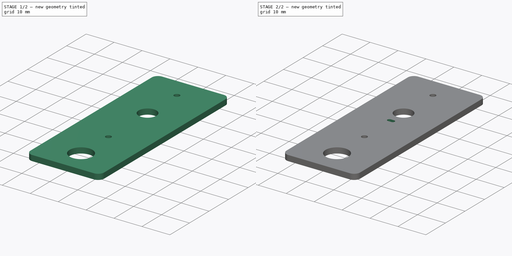
[diagram: build sequence overview — one tinted view per stage of 2, left to right]
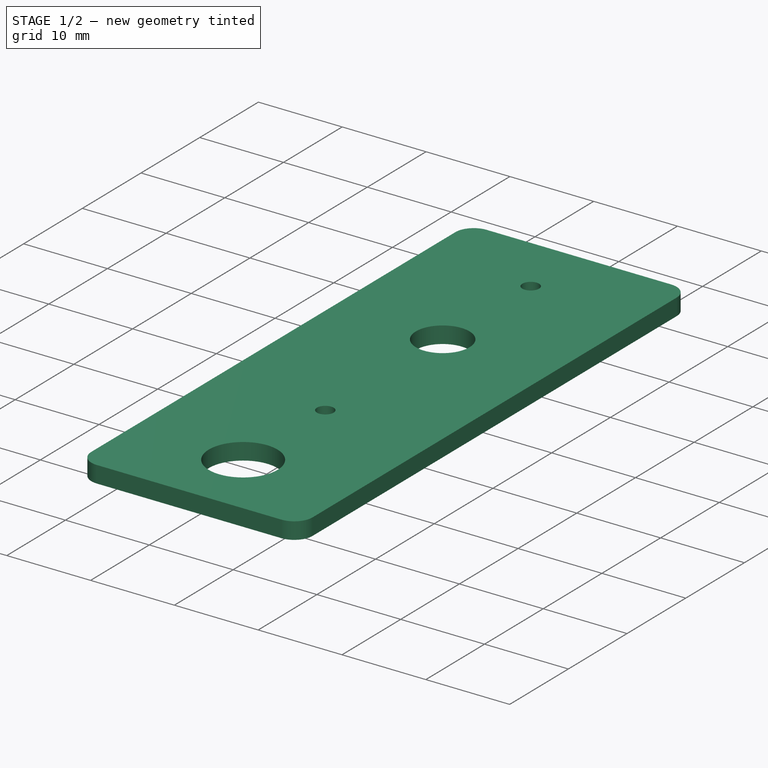
[diagram: stage 1 of 2 — iso view after this stage's code; geometry added in this stage tinted green]
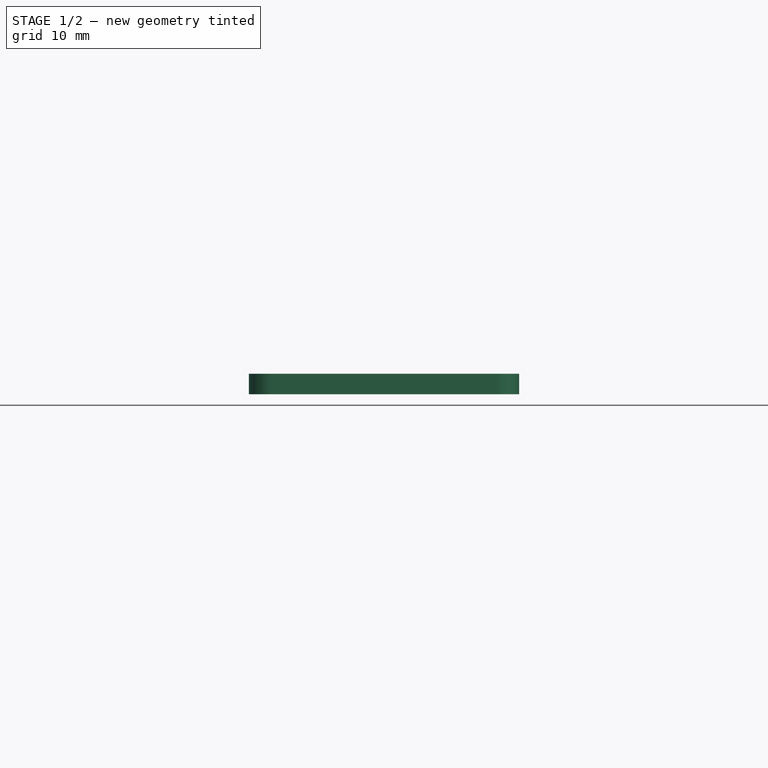
[diagram: stage 1 of 2 — front view after this stage's code; geometry added in this stage tinted green]
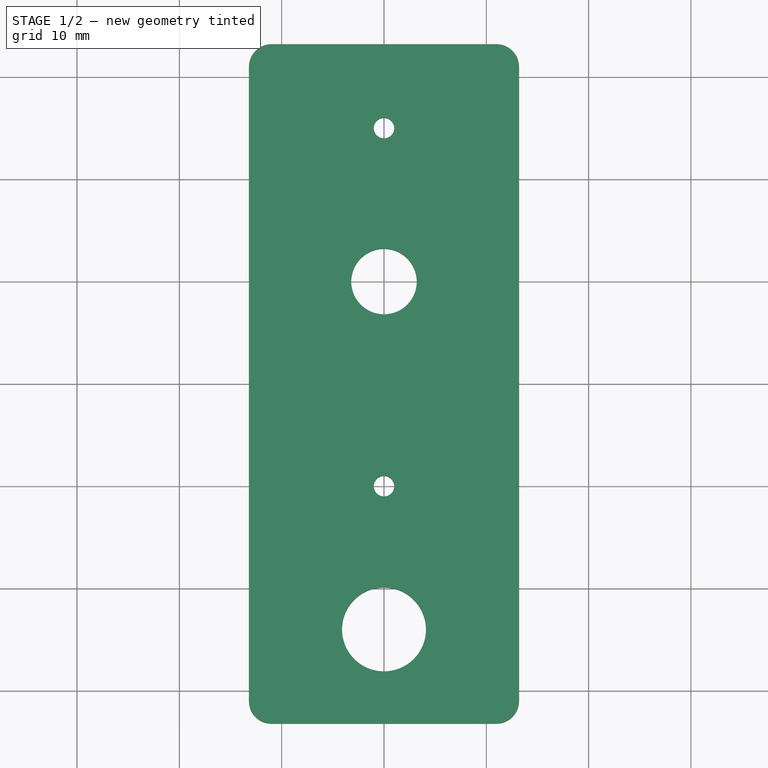
[diagram: stage 1 of 2 — top view after this stage's code; geometry added in this stage tinted green]
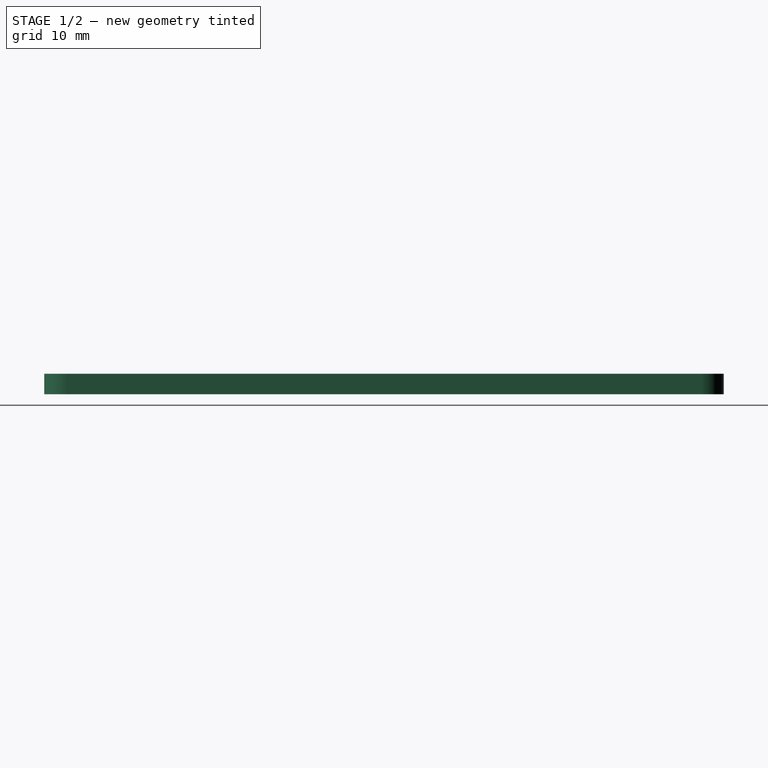
[diagram: stage 1 of 2 — right view after this stage's code; geometry added in this stage tinted green]
FCSTD DOCUMENT  (FreeCAD 0.21R33694 (Git))
Label: SidePanel_PCB
License: All rights reserved
LicenseURL: http://en.wikipedia.org/wiki/All_rights_reserved
objects: Sketcher::SketchObject×3, PartDesign::Pocket×2, Part::Feature×2, PartDesign::Pad×1, PartDesign::Body×1
note: 12 computed .brp shape members not serialized (recipe doc carries the construction recipe); baked Part::Feature solids carry a one-line shape summary decoded from their .brp

FEATURE [Sketcher::SketchObject] Sketch  label="SketchCorpo"
  FullyConstrained = true
  MapMode = 5
  Support = -> [XY_Plane]
  sketch-geometry (8):
    g0: LineSegment StartX=-11 StartY=33.2 StartZ=0 EndX=11 EndY=33.2 EndZ=0
    g1: LineSegment StartX=13.2 StartY=31 StartZ=0 EndX=13.2 EndY=-31 EndZ=0
    g2: LineSegment StartX=11 StartY=-33.2 StartZ=0 EndX=-11 EndY=-33.2 EndZ=0
    g3: LineSegment StartX=-13.2 StartY=-31 StartZ=0 EndX=-13.2 EndY=31 EndZ=0
    g4: ArcOfCircle CenterX=-11 CenterY=31 CenterZ=0 NormalX=0 NormalY=0 NormalZ=1 AngleXU=0 Radius=2.2 StartAngle=1.5708 EndAngle=3.14159
    g5: ArcOfCircle CenterX=11 CenterY=31 CenterZ=0 NormalX=0 NormalY=0 NormalZ=1 AngleXU=0 Radius=2.2 StartAngle=0 EndAngle=1.5708
    g6: ArcOfCircle CenterX=-11 CenterY=-31 CenterZ=0 NormalX=0 NormalY=0 NormalZ=1 AngleXU=0 Radius=2.2 StartAngle=3.14159 EndAngle=4.71239
    g7: ArcOfCircle CenterX=11 CenterY=-31 CenterZ=0 NormalX=0 NormalY=0 NormalZ=1 AngleXU=0 Radius=2.2 StartAngle=4.71239 EndAngle=6.28319
  constraints (18):
    c: Horizontal(g2)
    c: Vertical(g1)
    c: Tangent(g0,g4) = 1.5708
    c: Tangent(g3,g4) = 1.5708
    c: Diameter(g4) = 4.4
    c: Horizontal(g0)
    c: Vertical(g3)
    c: Tangent(g0,g5) = 1.5708
    c: Tangent(g1,g5) = 1.5708
    c: Tangent(g3,g6) = 1.5708
    c: Tangent(g2,g6) = 1.5708
    c: Tangent(g2,g7) = 1.5708
    c: Tangent(g1,g7) = 1.5708
    c: Symmetric(g4,g6,g-1)
    c: DistanceX(g3,g1) = 26.4
    c: DistanceY(g2,g0) = 66.4
    c: Equal(g4,g5)
    c: Symmetric(g6,g7,g-2)
FEATURE [PartDesign::Pad] Pad  label="Corpo"
  Direction = (0,0,1)
  Length = 2
  Length2 = 10
  Profile = -> Sketch
  ReferenceAxis = -> Sketch [N_Axis]
  Type = 0
FEATURE [Sketcher::SketchObject] Sketch001  label="SketchFuros"
  FullyConstrained = true
  MapMode = 5
  Placement = pos=(0,0,2) rot=(0,0,1;0rad)
  Support = -> [Pad]
  sketch-geometry (4):
    g0: Circle CenterX=0 CenterY=-10 CenterZ=0 NormalX=0 NormalY=0 NormalZ=1 AngleXU=0 Radius=1
    g1: Circle CenterX=0 CenterY=-24 CenterZ=0 NormalX=0 NormalY=0 NormalZ=1 AngleXU=0 Radius=4.1
    g2: Circle CenterX=0 CenterY=10 CenterZ=0 NormalX=0 NormalY=0 NormalZ=1 AngleXU=0 Radius=3.2
    g3: Circle CenterX=0 CenterY=25 CenterZ=0 NormalX=0 NormalY=0 NormalZ=1 AngleXU=0 Radius=1
  constraints (12):
    c: PointOnObject(g0,g-2)
    c: DistanceY(g0,g-1) = 10
    c: Diameter(g0) = 2
    c: PointOnObject(g1,g-2)
    c: DistanceY(g1,g0) = 14
    c: Diameter(g1) = 8.2
    c: PointOnObject(g2,g-2)
    c: DistanceY(g-1,g2) = 10
    c: Diameter(g2) = 6.4
    c: PointOnObject(g3,g-2)
    c: DistanceY(g2,g3) = 15
    c: Equal(g3,g0)
FEATURE [PartDesign::Pocket] Pocket  label="Furos"
  BaseFeature = -> Pad
  Direction = (0,0,-1)
  Length = 5
  Length2 = 5
  Profile = -> Sketch001
  ReferenceAxis = -> Sketch001 [N_Axis]
  Type = 1
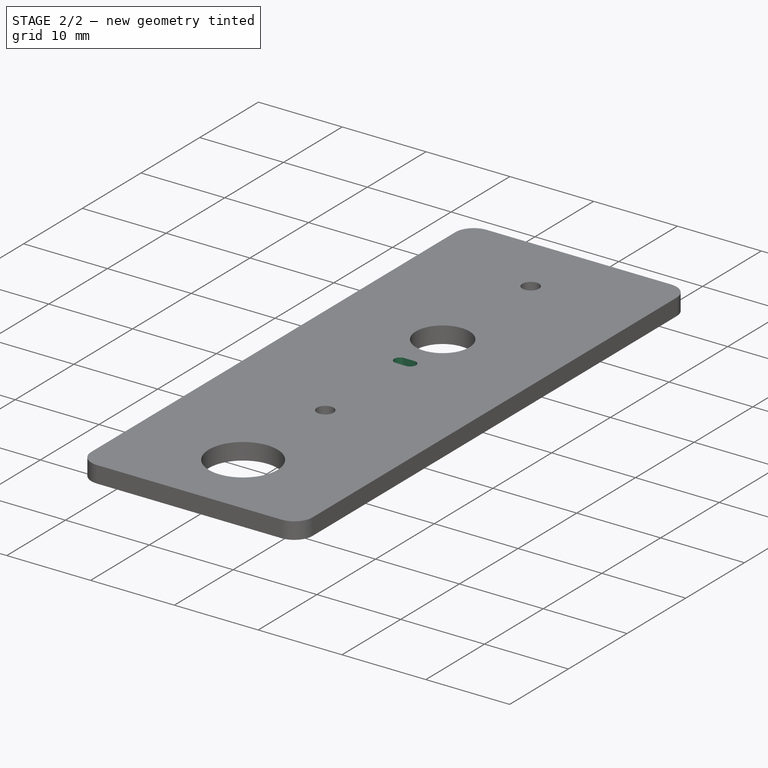
[diagram: stage 2 of 2 — iso view after this stage's code; geometry added in this stage tinted green]
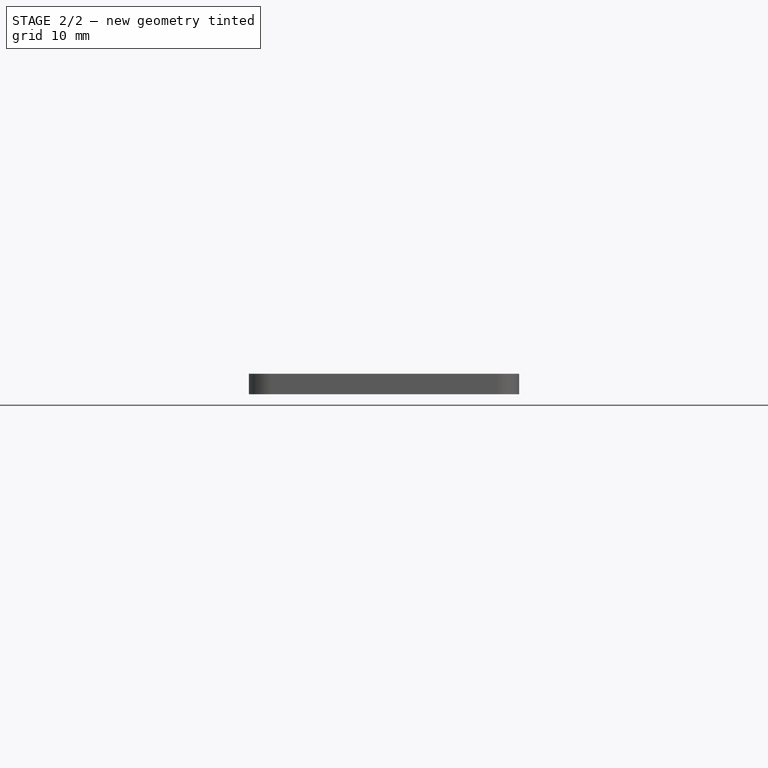
[diagram: stage 2 of 2 — front view after this stage's code; geometry added in this stage tinted green]
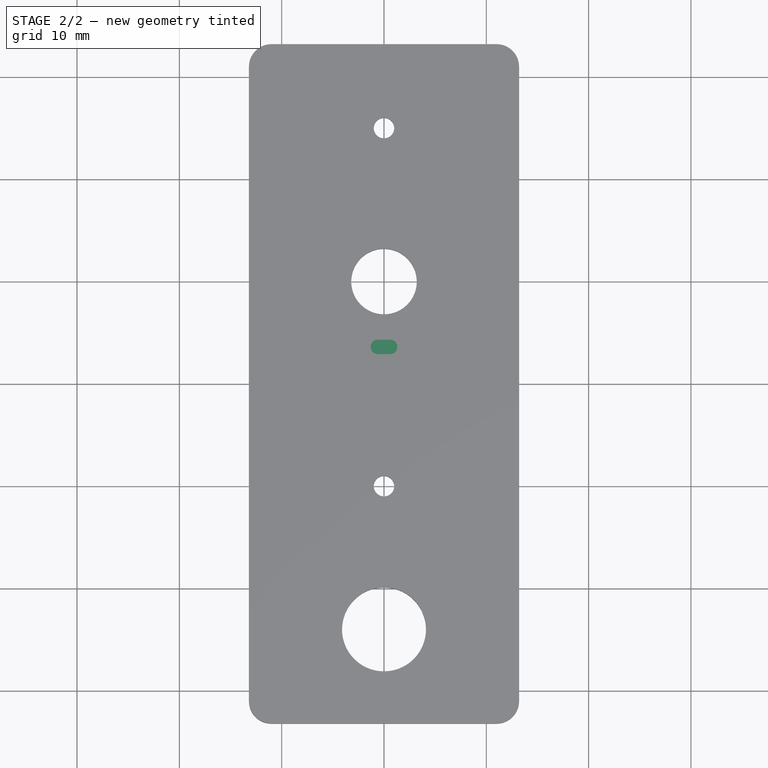
[diagram: stage 2 of 2 — top view after this stage's code; geometry added in this stage tinted green]
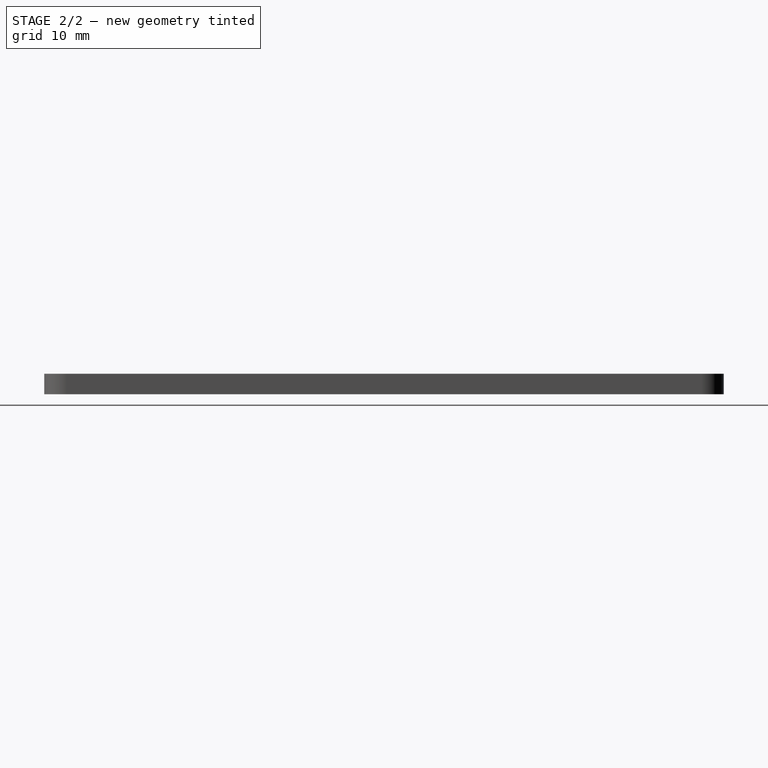
[diagram: stage 2 of 2 — right view after this stage's code; geometry added in this stage tinted green]
FEATURE [Sketcher::SketchObject] Sketch002  label="SketchFuroTrava"
  ExternalGeometry = -> [Pocket]
  FullyConstrained = true
  MapMode = 5
  Placement = pos=(0,0,2) rot=(0,0,1;0rad)
  Support = -> [Pocket]
  sketch-geometry (4):
    g0: ArcOfCircle CenterX=-0.6 CenterY=3.6 CenterZ=0 NormalX=0 NormalY=0 NormalZ=1 AngleXU=0 Radius=0.7 StartAngle=1.5708 EndAngle=4.71239
    g1: ArcOfCircle CenterX=0.6 CenterY=3.6 CenterZ=0 NormalX=0 NormalY=0 NormalZ=1 AngleXU=0 Radius=0.7 StartAngle=4.71239 EndAngle=7.85398
    g2: LineSegment StartX=-0.6 StartY=2.9 StartZ=0 EndX=0.6 EndY=2.9 EndZ=0
    g3: LineSegment StartX=0.6 StartY=4.3 StartZ=0 EndX=-0.6 EndY=4.3 EndZ=0
  constraints (9):
    c: Tangent(g0,g2) = -1.5708
    c: Tangent(g2,g1) = -1.5708
    c: Tangent(g1,g3) = -1.5708
    c: Tangent(g3,g0) = -1.5708
    c: Equal(g0,g1)
    c: DistanceY(g0,g-3) = 6.4
    c: DistanceX(g0,g1) = 1.2
    c: Diameter(g1) = 1.4
    c: Symmetric(g0,g1,g-2)
FEATURE [PartDesign::Pocket] Pocket001  label="FuroTRava"
  BaseFeature = -> Pocket
  Direction = (0,0,-1)
  Length = 1
  Length2 = 5
  Profile = -> Sketch002
  ReferenceAxis = -> Sketch002 [N_Axis]
  Type = 0
FEATURE [PartDesign::Body] Body
  Group = -> [Sketch,Pad,Sketch001,Pocket,Sketch002,Pocket001]
  Origin = -> Origin
  Tip = -> Pocket001
FEATURE [Part::Feature] Part__Feature  label="everlight-3MM-BLUE"
  Placement = pos=(-2.4e-15,-10,-4) rot=(0.57735,0.57735,0.57735;2.0944rad)
  shape: bbox 3.8 x 3.426 x 12.67 mm, 21 faces (baked)
FEATURE [Part::Feature] Part__Feature001  label="everlight_3MM-RED"
  Placement = pos=(0,25,-6) rot=(0,0,1;0rad)
  shape: bbox 3.8 x 3.5 x 8.5 mm, 46 faces, 3 solids (baked)
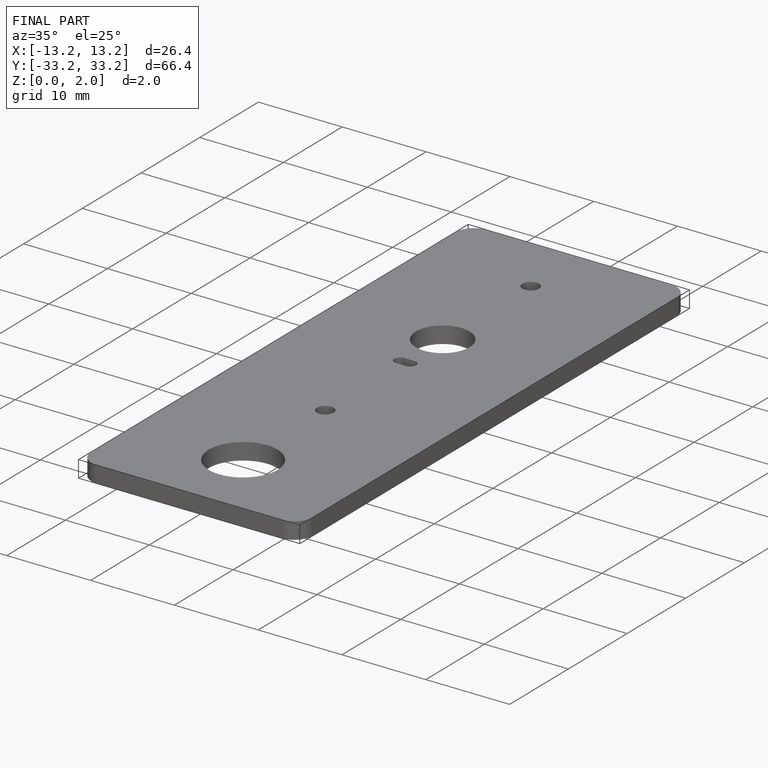
[diagram: finished part — iso view with bounding-box wireframe]
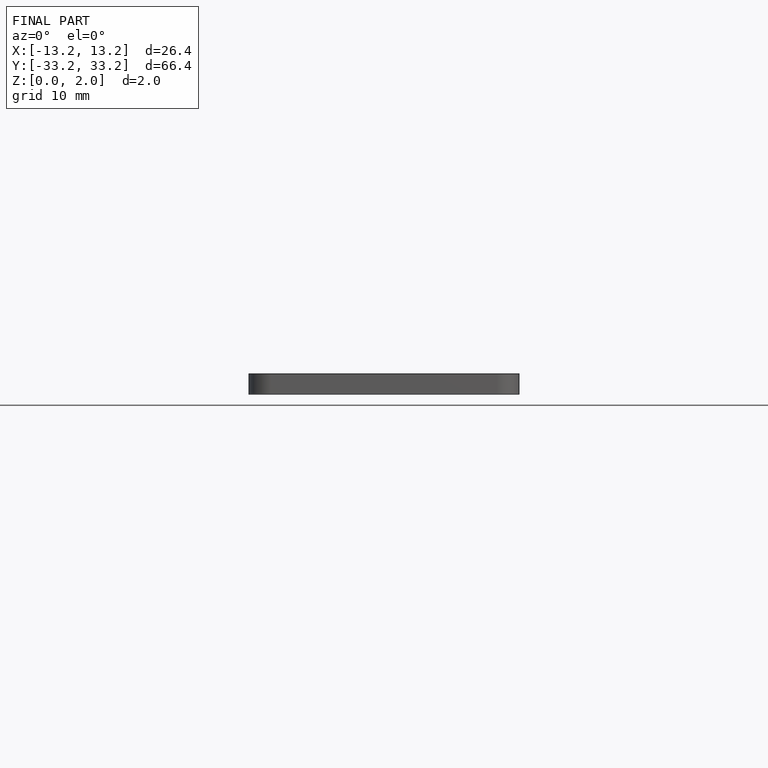
[diagram: finished part — front view with bounding-box wireframe]
